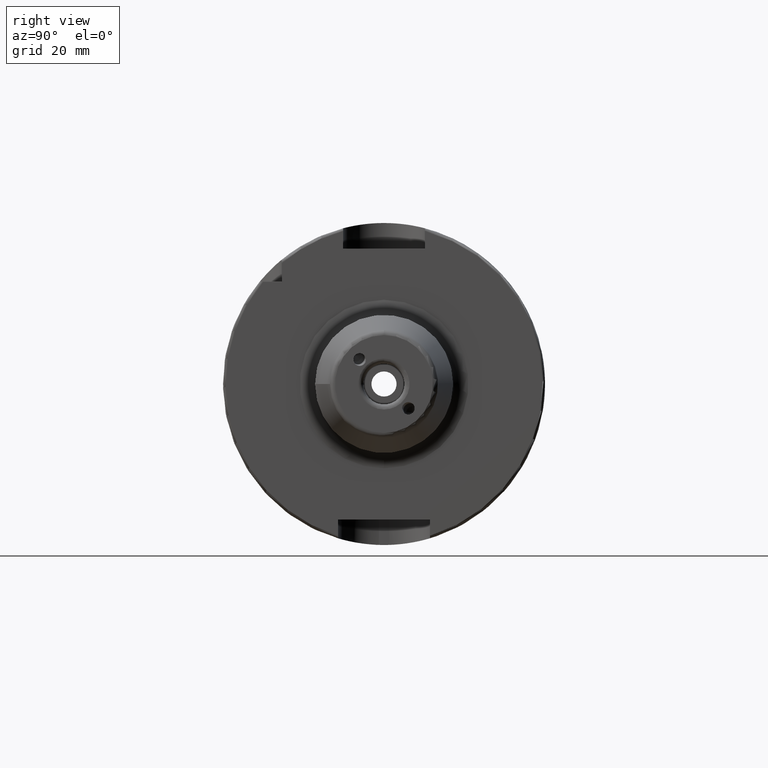
[diagram: clean part render]
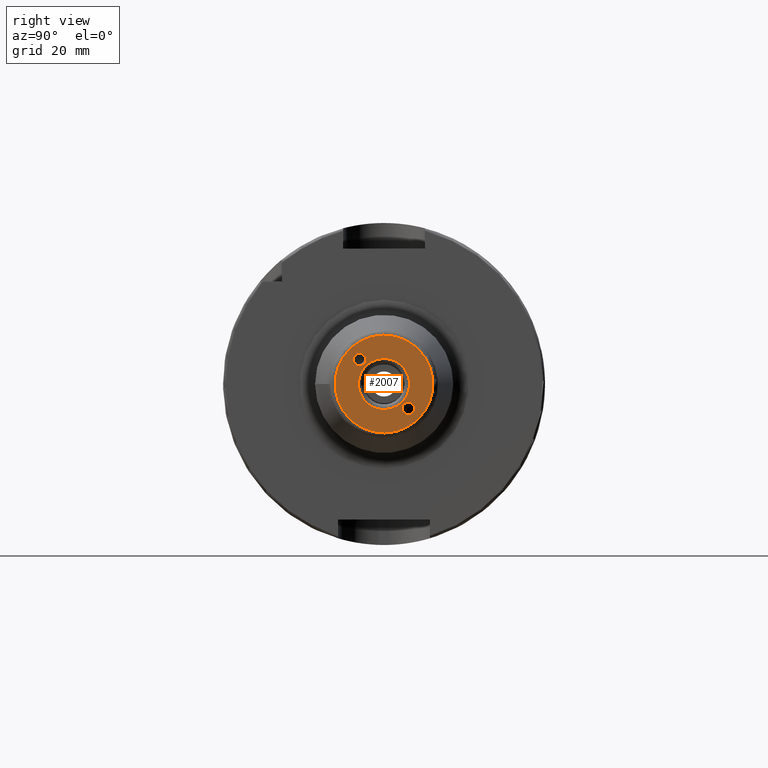
[diagram: same view with one face highlighted and labeled with its STEP entity id]
A machine part, right view. The second image highlights one B-rep face of the part: STEP entity #2007.
In plain terms, the highlighted planar face has unit normal (1, 0, 0).
Its self-contained STEP definition (entity closure, byte-faithful):
#89=FACE_BOUND('',#341,.T.);
#90=FACE_BOUND('',#342,.T.);
#91=FACE_BOUND('',#343,.T.);
#102=PLANE('',#2159);
#168=ELLIPSE('',#2149,1.2302494347154,1.2295);
#169=ELLIPSE('',#2153,1.2302494347154,1.2295);
#219=FACE_OUTER_BOUND('',#340,.T.);
#340=EDGE_LOOP('',(#1364));
#341=EDGE_LOOP('',(#1365));
#342=EDGE_LOOP('',(#1366));
#343=EDGE_LOOP('',(#1367));
#694=CIRCLE('',#2158,5.);
#695=CIRCLE('',#2160,9.57560687174069);
#819=VERTEX_POINT('',#3036);
#822=VERTEX_POINT('',#3045);
#825=VERTEX_POINT('',#3053);
#826=VERTEX_POINT('',#3057);
#1027=EDGE_CURVE('',#819,#819,#168,.T.);
#1031=EDGE_CURVE('',#822,#822,#169,.T.);
#1036=EDGE_CURVE('',#825,#825,#694,.T.);
#1037=EDGE_CURVE('',#826,#826,#695,.T.);
#1364=ORIENTED_EDGE('',*,*,#1037,.F.);
#1365=ORIENTED_EDGE('',*,*,#1027,.T.);
#1366=ORIENTED_EDGE('',*,*,#1031,.T.);
#1367=ORIENTED_EDGE('',*,*,#1036,.F.);
#2007=ADVANCED_FACE('',(#219,#89,#90,#91),#102,.T.);
#2149=AXIS2_PLACEMENT_3D('',#3037,#2412,#2413);
#2153=AXIS2_PLACEMENT_3D('',#3046,#2422,#2423);
#2158=AXIS2_PLACEMENT_3D('',#3055,#2433,#2434);
#2159=AXIS2_PLACEMENT_3D('',#3056,#2435,#2436);
#2160=AXIS2_PLACEMENT_3D('',#3058,#2437,#2438);
#2412=DIRECTION('center_axis',(-1.,0.,0.));
#2413=DIRECTION('ref_axis',(0.,-0.707106781186452,0.707106781186643));
#2422=DIRECTION('center_axis',(-1.,0.,0.));
#2423=DIRECTION('ref_axis',(0.,0.707106781186452,-0.707106781186643));
#2433=DIRECTION('center_axis',(1.,0.,0.));
#2434=DIRECTION('ref_axis',(0.,-1.,1.83697019872103E-16));
#2435=DIRECTION('center_axis',(1.,0.,0.));
#2436=DIRECTION('ref_axis',(0.,0.,-1.));
#2437=DIRECTION('center_axis',(-1.,0.,0.));
#2438=DIRECTION('ref_axis',(0.,-1.,1.83697019872103E-16));
#3036=CARTESIAN_POINT('',(80.,-3.54309599856719,4.77222133832858));
#3037=CARTESIAN_POINT('Origin',(80.,-4.7729707730092,4.7729707730092));
#3045=CARTESIAN_POINT('',(80.,3.54309599856719,-4.77222133832858));
#3046=CARTESIAN_POINT('Origin',(80.,4.7729707730092,-4.7729707730092));
#3053=CARTESIAN_POINT('',(80.,2.71834567430179E-15,5.));
#3055=CARTESIAN_POINT('Origin',(80.,3.33066907387547E-15,0.));
#3056=CARTESIAN_POINT('Origin',(80.,4.,0.));
#3057=CARTESIAN_POINT('',(80.,2.15799544333841E-15,9.57560687174069));
#3058=CARTESIAN_POINT('Origin',(80.,3.33066907387547E-15,0.));